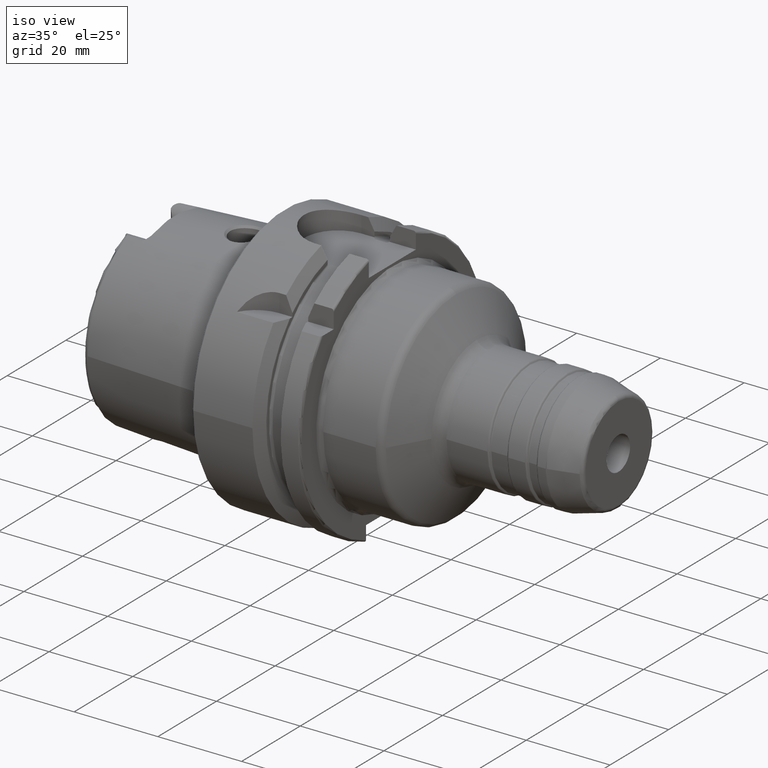
[diagram: clean part render]
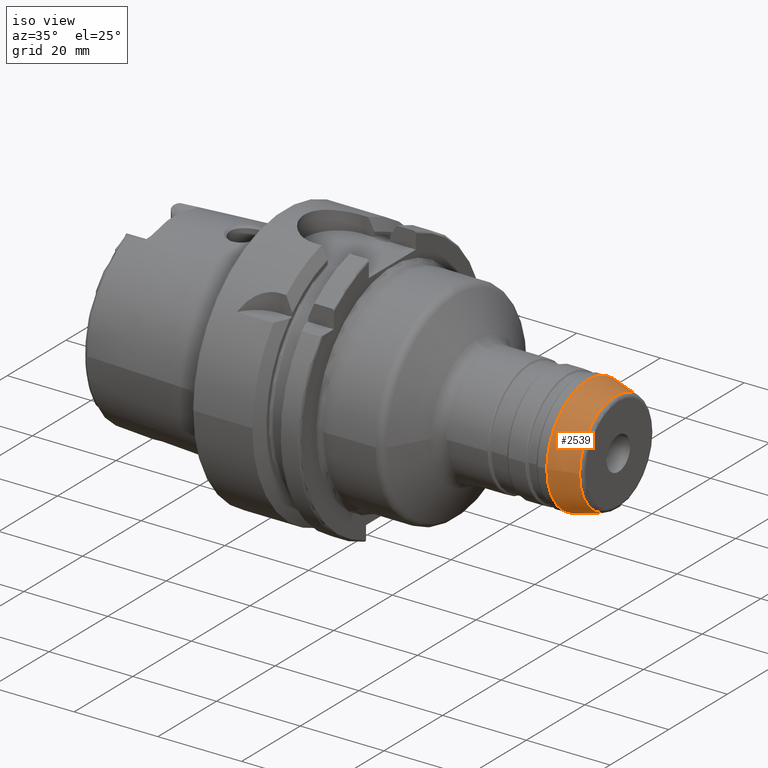
[diagram: same view with one face highlighted and labeled with its STEP entity id]
A machine part, iso view. The second image highlights one B-rep face of the part: STEP entity #2539.
In plain terms, the highlighted conical surface has half-angle 15 deg.
Its self-contained STEP definition (entity closure, byte-faithful):
#199=LINE('',#4054,#314);
#314=VECTOR('',#3253,13.);
#423=CONICAL_SURFACE('',#2773,13.,0.261799387799148);
#458=FACE_OUTER_BOUND('',#592,.T.);
#592=EDGE_LOOP('',(#1823,#1824,#1825,#1826,#1827,#1828,#1829,#1830));
#791=CIRCLE('',#2769,13.9659258262891);
#792=CIRCLE('',#2770,13.9659258262891);
#794=CIRCLE('',#2772,13.9659258262891);
#795=CIRCLE('',#2774,12.1985988383101);
#796=CIRCLE('',#2775,12.1985988383101);
#797=CIRCLE('',#2776,12.1985988383101);
#1004=VERTEX_POINT('',#4041);
#1005=VERTEX_POINT('',#4042);
#1006=VERTEX_POINT('',#4044);
#1007=VERTEX_POINT('',#4049);
#1008=VERTEX_POINT('',#4050);
#1009=VERTEX_POINT('',#4052);
#1316=EDGE_CURVE('',#1004,#1005,#791,.T.);
#1317=EDGE_CURVE('',#1005,#1006,#792,.T.);
#1319=EDGE_CURVE('',#1006,#1004,#794,.T.);
#1320=EDGE_CURVE('',#1007,#1008,#795,.T.);
#1321=EDGE_CURVE('',#1009,#1007,#796,.T.);
#1322=EDGE_CURVE('',#1009,#1005,#199,.T.);
#1323=EDGE_CURVE('',#1008,#1009,#797,.T.);
#1823=ORIENTED_EDGE('',*,*,#1320,.F.);
#1824=ORIENTED_EDGE('',*,*,#1321,.F.);
#1825=ORIENTED_EDGE('',*,*,#1322,.T.);
#1826=ORIENTED_EDGE('',*,*,#1316,.F.);
#1827=ORIENTED_EDGE('',*,*,#1319,.F.);
#1828=ORIENTED_EDGE('',*,*,#1317,.F.);
#1829=ORIENTED_EDGE('',*,*,#1322,.F.);
#1830=ORIENTED_EDGE('',*,*,#1323,.F.);
#2539=ADVANCED_FACE('',(#458),#423,.T.);
#2769=AXIS2_PLACEMENT_3D('',#4043,#3239,#3240);
#2770=AXIS2_PLACEMENT_3D('',#4045,#3241,#3242);
#2772=AXIS2_PLACEMENT_3D('',#4047,#3245,#3246);
#2773=AXIS2_PLACEMENT_3D('',#4048,#3247,#3248);
#2774=AXIS2_PLACEMENT_3D('',#4051,#3249,#3250);
#2775=AXIS2_PLACEMENT_3D('',#4053,#3251,#3252);
#2776=AXIS2_PLACEMENT_3D('',#4055,#3254,#3255);
#3239=DIRECTION('center_axis',(-1.,0.,0.));
#3240=DIRECTION('ref_axis',(0.,-1.,3.06161699786838E-17));
#3241=DIRECTION('center_axis',(-1.,0.,0.));
#3242=DIRECTION('ref_axis',(0.,-1.,3.06161699786838E-17));
#3245=DIRECTION('center_axis',(-1.,0.,0.));
#3246=DIRECTION('ref_axis',(0.,-1.,3.06161699786838E-17));
#3247=DIRECTION('center_axis',(-1.,0.,0.));
#3248=DIRECTION('ref_axis',(0.,1.,0.));
#3249=DIRECTION('center_axis',(1.,0.,0.));
#3250=DIRECTION('ref_axis',(0.,-1.,3.06161699786838E-17));
#3251=DIRECTION('center_axis',(1.,0.,0.));
#3252=DIRECTION('ref_axis',(0.,-1.,3.06161699786838E-17));
#3253=DIRECTION('',(-0.965925826289068,-0.25881904510252,-3.16961915143175E-17));
#3254=DIRECTION('center_axis',(1.,0.,0.));
#3255=DIRECTION('ref_axis',(0.,-1.,3.06161699786838E-17));
#4041=CARTESIAN_POINT('',(72.6630649323774,13.9659258262891,-4.27583159007356E-15));
#4042=CARTESIAN_POINT('',(72.6630649323774,-13.9659258262891,-1.71033263602943E-15));
#4043=CARTESIAN_POINT('Origin',(72.6630649323774,0.,-2.13791579503678E-15));
#4044=CARTESIAN_POINT('',(72.6630649323774,-1.71033263602943E-15,13.9659258262891));
#4045=CARTESIAN_POINT('Origin',(72.6630649323774,0.,-2.13791579503678E-15));
#4047=CARTESIAN_POINT('Origin',(72.6630649323774,0.,-2.13791579503678E-15));
#4048=CARTESIAN_POINT('Origin',(76.2679491924311,0.,0.));
#4049=CARTESIAN_POINT('',(79.2588190451025,12.1985988383101,-7.46948751070954E-16));
#4050=CARTESIAN_POINT('',(79.2588190451025,-1.49389750214191E-15,12.1985988383101));
#4051=CARTESIAN_POINT('Origin',(79.2588190451025,0.,-1.86737187767739E-15));
#4052=CARTESIAN_POINT('',(79.2588190451025,-12.1985988383101,-1.49389750214191E-15));
#4053=CARTESIAN_POINT('Origin',(79.2588190451025,0.,-1.86737187767739E-15));
#4054=CARTESIAN_POINT('',(76.2679491924311,-13.,-1.59204083889156E-15));
#4055=CARTESIAN_POINT('Origin',(79.2588190451025,0.,-1.86737187767739E-15));